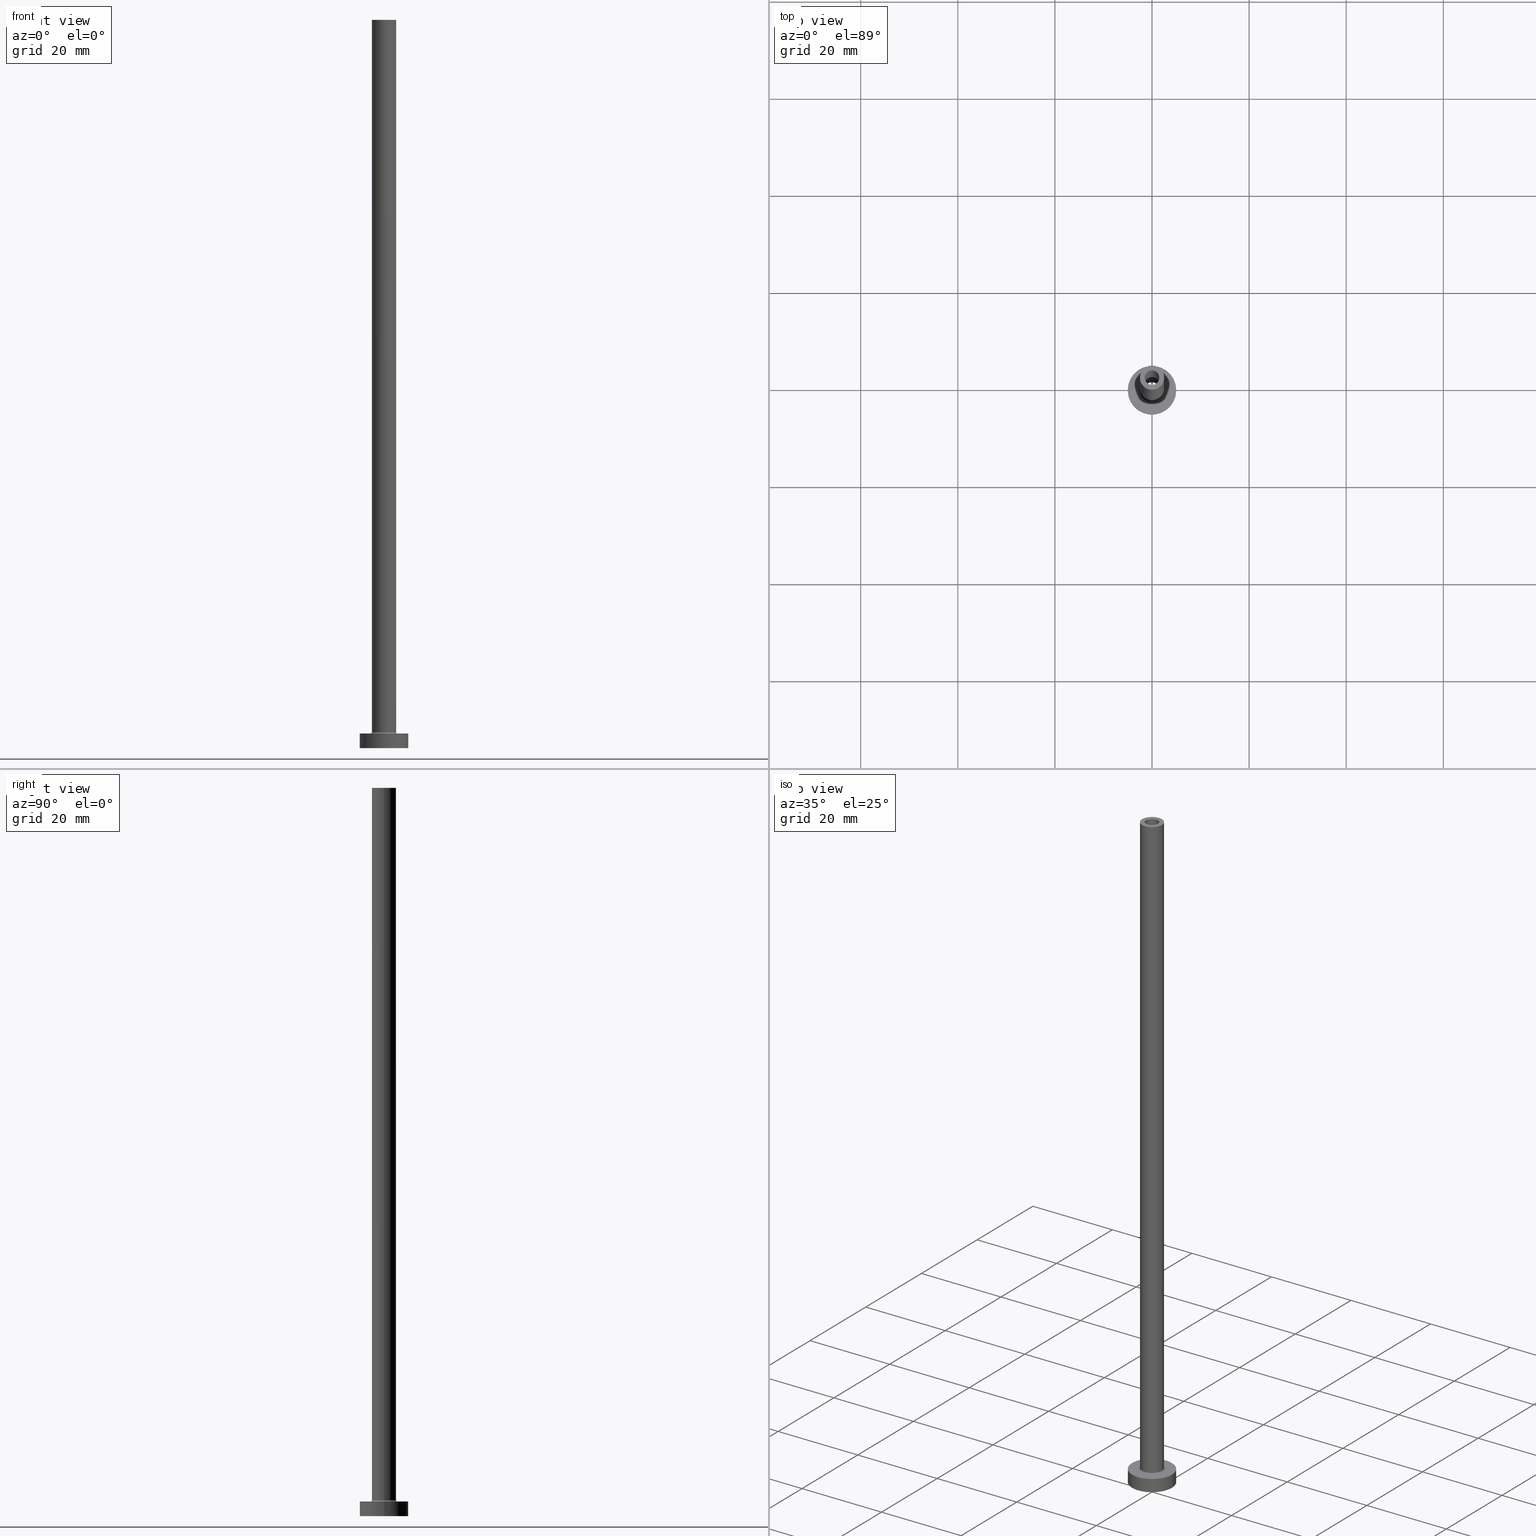
[diagram: canonical four-view strip — front | top / right | iso, engineering-drawing reading convention]
A machine part, canonical four-view strip (front | top / right | iso — engineering-drawing reading convention). The complete STEP part file that produces these views, byte-faithful:
ISO-10303-21;
HEADER;
FILE_DESCRIPTION (( 'STEP AP203' ),
    '1' );
FILE_NAME ('88a8.STEP',
    '2023-02-13T18:02:23',
    ( '' ),
    ( '' ),
    'SwSTEP 2.0',
    'SolidWorks 2019',
    '' );
FILE_SCHEMA (( 'CONFIG_CONTROL_DESIGN' ));
ENDSEC;

DATA;
#1 = CC_DESIGN_DATE_AND_TIME_ASSIGNMENT ( #335, #192, ( #316 ) ) ;
#2 = AXIS2_PLACEMENT_3D ( 'NONE', #329, #146, #459 ) ;
#3 = VERTEX_POINT ( 'NONE', #208 ) ;
#4 = DIRECTION ( 'NONE',  ( 0.000000000000000000, 0.000000000000000000, 1.000000000000000000 ) ) ;
#5 = CARTESIAN_POINT ( 'NONE',  ( -5.000000000000000000, 0.000000000000000000, 0.000000000000000000 ) ) ;
#6 = APPROVAL_STATUS ( 'not_yet_approved' ) ;
#7 = ADVANCED_FACE ( 'NONE', ( #280, #64 ), #299, .T. ) ;
#8 = VERTEX_POINT ( 'NONE', #416 ) ;
#9 = CARTESIAN_POINT ( 'NONE',  ( 2.500000000000000000, 3.061616997868383141E-16, 3.299999999999997158 ) ) ;
#10 = COORDINATED_UNIVERSAL_TIME_OFFSET ( 1, 0, .AHEAD. ) ;
#11 = DIRECTION ( 'NONE',  ( 1.000000000000000000, 0.000000000000000000, 0.000000000000000000 ) ) ;
#12 = ORIENTED_EDGE ( 'NONE', *, *, #251, .T. ) ;
#13 = DIRECTION ( 'NONE',  ( -1.000000000000000000, 0.000000000000000000, 0.000000000000000000 ) ) ;
#14 = AXIS2_PLACEMENT_3D ( 'NONE', #439, #82, #333 ) ;
#15 = CARTESIAN_POINT ( 'NONE',  ( 0.000000000000000000, 0.000000000000000000, 3.000000000000000000 ) ) ;
#16 = DIRECTION ( 'NONE',  ( -0.000000000000000000, -0.000000000000000000, -1.000000000000000000 ) ) ;
#17 = CARTESIAN_POINT ( 'NONE',  ( -1.650000000000000133, 0.000000000000000000, 105.0000000000000000 ) ) ;
#18 = EDGE_LOOP ( 'NONE', ( #341, #222 ) ) ;
#19 = DIRECTION ( 'NONE',  ( 1.000000000000000000, 0.000000000000000000, 0.000000000000000000 ) ) ;
#20 = CARTESIAN_POINT ( 'NONE',  ( 0.000000000000000000, 0.000000000000000000, 0.000000000000000000 ) ) ;
#21 = VERTEX_POINT ( 'NONE', #308 ) ;
#22 = PRODUCT_DEFINITION_SHAPE ( 'NONE', 'NONE',  #316 ) ;
#23 = FACE_OUTER_BOUND ( 'NONE', #293, .T. ) ;
#24 = CARTESIAN_POINT ( 'NONE',  ( 2.799999999999999822, 0.000000000000000000, 3.299999999999997158 ) ) ;
#25 = EDGE_LOOP ( 'NONE', ( #200, #405 ) ) ;
#26 = AXIS2_PLACEMENT_3D ( 'NONE', #328, #425, #112 ) ;
#27 = ADVANCED_FACE ( 'NONE', ( #126 ), #415, .F. ) ;
#28 = PERSON_AND_ORGANIZATION_ROLE ( 'classification_officer' ) ;
#29 = VERTEX_POINT ( 'NONE', #103 ) ;
#30 = DIRECTION ( 'NONE',  ( -0.000000000000000000, -0.000000000000000000, -1.000000000000000000 ) ) ;
#31 = EDGE_LOOP ( 'NONE', ( #143, #99 ) ) ;
#32 = EDGE_LOOP ( 'NONE', ( #291, #379 ) ) ;
#33 = CARTESIAN_POINT ( 'NONE',  ( -1.500000000000000222, 0.000000000000000000, 150.0000000000000000 ) ) ;
#34 = CIRCLE ( 'NONE', #90, 2.799999999999999822 ) ;
#35 = CC_DESIGN_APPROVAL ( #80, ( #316 ) ) ;
#36 = ORIENTED_EDGE ( 'NONE', *, *, #306, .T. ) ;
#37 = CC_DESIGN_PERSON_AND_ORGANIZATION_ASSIGNMENT ( #120, #56, ( #339 ) ) ;
#38 = VERTEX_POINT ( 'NONE', #246 ) ;
#39 = CARTESIAN_POINT ( 'NONE',  ( 0.000000000000000000, 0.000000000000000000, 105.0000000000000000 ) ) ;
#40 = CALENDAR_DATE ( 2023, 13, 2 ) ;
#41 = ORIENTED_EDGE ( 'NONE', *, *, #42, .T. ) ;
#42 = EDGE_CURVE ( 'NONE', #159, #38, #312, .T. ) ;
#43 = ADVANCED_FACE ( 'NONE', ( #460 ), #345, .F. ) ;
#44 = PERSON_AND_ORGANIZATION ( #167, #295 ) ;
#45 = DIRECTION ( 'NONE',  ( -1.000000000000000000, 1.224646799147353207E-16, 0.000000000000000000 ) ) ;
#46 = LINE ( 'NONE', #66, #285 ) ;
#47 = CC_DESIGN_DATE_AND_TIME_ASSIGNMENT ( #332, #354, ( #394 ) ) ;
#48 = ORIENTED_EDGE ( 'NONE', *, *, #172, .F. ) ;
#49 = DIRECTION ( 'NONE',  ( 0.000000000000000000, 0.000000000000000000, 1.000000000000000000 ) ) ;
#50 = EDGE_CURVE ( 'NONE', #461, #38, #46, .T. ) ;
#51 = COORDINATED_UNIVERSAL_TIME_OFFSET ( 1, 0, .AHEAD. ) ;
#52 = ORIENTED_EDGE ( 'NONE', *, *, #224, .T. ) ;
#53 = EDGE_CURVE ( 'NONE', #268, #159, #451, .T. ) ;
#54 = CARTESIAN_POINT ( 'NONE',  ( -1.650000000000000133, 0.000000000000000000, 109.6669047558311973 ) ) ;
#55 = ORIENTED_EDGE ( 'NONE', *, *, #380, .F. ) ;
#56 = PERSON_AND_ORGANIZATION_ROLE ( 'creator' ) ;
#57 = DIRECTION ( 'NONE',  ( -0.000000000000000000, -0.000000000000000000, -1.000000000000000000 ) ) ;
#58 = APPROVAL_STATUS ( 'not_yet_approved' ) ;
#59 = EDGE_CURVE ( 'NONE', #360, #322, #436, .T. ) ;
#60 = DIRECTION ( 'NONE',  ( 0.000000000000000000, 0.000000000000000000, 1.000000000000000000 ) ) ;
#61 = CIRCLE ( 'NONE', #424, 2.500000000000000000 ) ;
#62 = FACE_OUTER_BOUND ( 'NONE', #382, .T. ) ;
#63 = AXIS2_PLACEMENT_3D ( 'NONE', #84, #404, #86 ) ;
#64 = FACE_OUTER_BOUND ( 'NONE', #104, .T. ) ;
#65 = ORIENTED_EDGE ( 'NONE', *, *, #171, .F. ) ;
#66 = CARTESIAN_POINT ( 'NONE',  ( -2.500000000000000000, 0.000000000000000000, 150.0000000000000000 ) ) ;
#67 = VERTEX_POINT ( 'NONE', #258 ) ;
#68 = DIRECTION ( 'NONE',  ( 1.000000000000000000, 0.000000000000000000, 0.000000000000000000 ) ) ;
#69 = TOROIDAL_SURFACE ( 'NONE', #361, 2.799999999999999822, 0.2999999999999999889 ) ;
#70 = EDGE_LOOP ( 'NONE', ( #369, #52, #175, #134 ) ) ;
#71 = DIRECTION ( 'NONE',  ( 0.000000000000000000, 0.000000000000000000, 1.000000000000000000 ) ) ;
#72 = VECTOR ( 'NONE', #130, 1000.000000000000000 ) ;
#73 = PLANE ( 'NONE',  #152 ) ;
#74 = MANIFOLD_SOLID_BREP ( 'Odebrat vysunut�m4', #396 ) ;
#75 = FACE_OUTER_BOUND ( 'NONE', #76, .T. ) ;
#76 = EDGE_LOOP ( 'NONE', ( #155, #162, #115, #12 ) ) ;
#77 = DIRECTION ( 'NONE',  ( 1.000000000000000000, 0.000000000000000000, 0.000000000000000000 ) ) ;
#78 = CARTESIAN_POINT ( 'NONE',  ( 1.500000000000000222, 1.836970198721029934E-16, 150.0000000000000000 ) ) ;
#79 = FACE_BOUND ( 'NONE', #25, .T. ) ;
#80 = APPROVAL ( #269, 'NEUR�EN�' ) ;
#81 = AXIS2_PLACEMENT_3D ( 'NONE', #441, #94, #445 ) ;
#82 = DIRECTION ( 'NONE',  ( 0.000000000000000000, 0.000000000000000000, 1.000000000000000000 ) ) ;
#83 = AXIS2_PLACEMENT_3D ( 'NONE', #178, #386, #139 ) ;
#84 = CARTESIAN_POINT ( 'NONE',  ( 0.000000000000000000, 0.000000000000000000, 105.0000000000000000 ) ) ;
#85 = DIRECTION ( 'NONE',  ( 1.000000000000000000, 0.000000000000000000, 0.000000000000000000 ) ) ;
#86 = DIRECTION ( 'NONE',  ( 1.000000000000000000, 0.000000000000000000, 0.000000000000000000 ) ) ;
#87 = ORIENTED_EDGE ( 'NONE', *, *, #279, .F. ) ;
#88 = CARTESIAN_POINT ( 'NONE',  ( 1.500000000000000222, 1.836970198721029934E-16, 150.0000000000000000 ) ) ;
#89 = CARTESIAN_POINT ( 'NONE',  ( -2.500000000000000000, 0.000000000000000000, 150.0000000000000000 ) ) ;
#90 = AXIS2_PLACEMENT_3D ( 'NONE', #321, #298, #442 ) ;
#91 = DIRECTION ( 'NONE',  ( 0.000000000000000000, 0.000000000000000000, -1.000000000000000000 ) ) ;
#92 = EDGE_CURVE ( 'NONE', #322, #458, #384, .T. ) ;
#93 = DIRECTION ( 'NONE',  ( -1.000000000000000000, 0.000000000000000000, 0.000000000000000000 ) ) ;
#94 = DIRECTION ( 'NONE',  ( 0.000000000000000000, 0.000000000000000000, -1.000000000000000000 ) ) ;
#95 = ORIENTED_EDGE ( 'NONE', *, *, #315, .T. ) ;
#96 = DIRECTION ( 'NONE',  ( 0.000000000000000000, 0.000000000000000000, 1.000000000000000000 ) ) ;
#97 = COORDINATED_UNIVERSAL_TIME_OFFSET ( 1, 0, .AHEAD. ) ;
#99 = ORIENTED_EDGE ( 'NONE', *, *, #225, .T. ) ;
#98 = CIRCLE ( 'NONE', #418, 5.000000000000000000 ) ;
#100 = APPROVAL_PERSON_ORGANIZATION ( #44, #326, #263 ) ;
#101 = CIRCLE ( 'NONE', #336, 0.2999999999999999334 ) ;
#102 = CIRCLE ( 'NONE', #63, 1.500000000000000222 ) ;
#103 = CARTESIAN_POINT ( 'NONE',  ( 5.000000000000000000, 6.123233995736766282E-16, 0.000000000000000000 ) ) ;
#104 = EDGE_LOOP ( 'NONE', ( #273, #183 ) ) ;
#105 = CIRCLE ( 'NONE', #310, 1.500000000000000222 ) ;
#106 = DIRECTION ( 'NONE',  ( 0.000000000000000000, 0.000000000000000000, 1.000000000000000000 ) ) ;
#107 = CC_DESIGN_PERSON_AND_ORGANIZATION_ASSIGNMENT ( #364, #337, ( #227 ) ) ;
#108 = APPLICATION_CONTEXT ( 'configuration controlled 3d designs of mechanical parts and assemblies' ) ;
#109 = ORIENTED_EDGE ( 'NONE', *, *, #409, .T. ) ;
#110 = APPLICATION_CONTEXT ( 'configuration controlled 3d designs of mechanical parts and assemblies' ) ;
#111 = VERTEX_POINT ( 'NONE', #389 ) ;
#112 = DIRECTION ( 'NONE',  ( -1.000000000000000000, 0.000000000000000000, 0.000000000000000000 ) ) ;
#113 = DIRECTION ( 'NONE',  ( -0.000000000000000000, -0.000000000000000000, -1.000000000000000000 ) ) ;
#114 = APPROVAL_DATE_TIME ( #179, #326 ) ;
#115 = ORIENTED_EDGE ( 'NONE', *, *, #50, .T. ) ;
#116 = CARTESIAN_POINT ( 'NONE',  ( 0.000000000000000000, 0.000000000000000000, 105.0000000000000000 ) ) ;
#117 = APPROVAL_PERSON_ORGANIZATION ( #237, #149, #128 ) ;
#118 = ORIENTED_EDGE ( 'NONE', *, *, #174, .F. ) ;
#119 = AXIS2_PLACEMENT_3D ( 'NONE', #304, #60, #129 ) ;
#120 = PERSON_AND_ORGANIZATION ( #167, #295 ) ;
#121 = DIRECTION ( 'NONE',  ( 1.000000000000000000, 0.000000000000000000, 0.000000000000000000 ) ) ;
#122 = ORIENTED_EDGE ( 'NONE', *, *, #174, .T. ) ;
#123 = EDGE_CURVE ( 'NONE', #38, #8, #101, .T. ) ;
#124 = AXIS2_PLACEMENT_3D ( 'NONE', #368, #16, #156 ) ;
#125 = ORIENTED_EDGE ( 'NONE', *, *, #279, .T. ) ;
#126 = FACE_OUTER_BOUND ( 'NONE', #70, .T. ) ;
#127 = CC_DESIGN_PERSON_AND_ORGANIZATION_ASSIGNMENT ( #282, #427, ( #339 ) ) ;
#128 = APPROVAL_ROLE ( '' ) ;
#129 = DIRECTION ( 'NONE',  ( 1.000000000000000000, 0.000000000000000000, -0.000000000000000000 ) ) ;
#130 = DIRECTION ( 'NONE',  ( -0.000000000000000000, -0.000000000000000000, -1.000000000000000000 ) ) ;
#131 =( GEOMETRIC_REPRESENTATION_CONTEXT ( 3 ) GLOBAL_UNCERTAINTY_ASSIGNED_CONTEXT ( ( #252 ) ) GLOBAL_UNIT_ASSIGNED_CONTEXT ( ( #232, #265, #431 ) ) REPRESENTATION_CONTEXT ( 'NONE', 'WORKASPACE' ) );
#132 = ADVANCED_BREP_SHAPE_REPRESENTATION ( '88a8', ( #74, #14 ), #131 ) ;
#133 = EDGE_CURVE ( 'NONE', #461, #268, #187, .T. ) ;
#134 = ORIENTED_EDGE ( 'NONE', *, *, #197, .F. ) ;
#135 = CIRCLE ( 'NONE', #2, 2.500000000000000000 ) ;
#136 = LOCAL_TIME ( 19, 2, 23.00000000000000000, #201 ) ;
#137 = ORIENTED_EDGE ( 'NONE', *, *, #420, .F. ) ;
#138 = ORIENTED_EDGE ( 'NONE', *, *, #181, .F. ) ;
#139 = DIRECTION ( 'NONE',  ( 1.000000000000000000, 0.000000000000000000, 0.000000000000000000 ) ) ;
#140 = ADVANCED_FACE ( 'NONE', ( #358 ), #144, .T. ) ;
#141 = ORIENTED_EDGE ( 'NONE', *, *, #197, .T. ) ;
#142 = AXIS2_PLACEMENT_3D ( 'NONE', #24, #403, #446 ) ;
#143 = ORIENTED_EDGE ( 'NONE', *, *, #429, .T. ) ;
#144 = CYLINDRICAL_SURFACE ( 'NONE', #26, 2.500000000000000000 ) ;
#145 = ORIENTED_EDGE ( 'NONE', *, *, #251, .F. ) ;
#146 = DIRECTION ( 'NONE',  ( 0.000000000000000000, 0.000000000000000000, 1.000000000000000000 ) ) ;
#147 = FACE_BOUND ( 'NONE', #357, .T. ) ;
#148 = DIRECTION ( 'NONE',  ( 1.000000000000000000, 0.000000000000000000, 0.000000000000000000 ) ) ;
#149 = APPROVAL ( #58, 'NEUR�EN�' ) ;
#150 = CYLINDRICAL_SURFACE ( 'NONE', #81, 1.650000000000000133 ) ;
#151 = PERSON_AND_ORGANIZATION ( #167, #295 ) ;
#152 = AXIS2_PLACEMENT_3D ( 'NONE', #217, #106, #309 ) ;
#153 = CC_DESIGN_APPROVAL ( #326, ( #394 ) ) ;
#154 = MECHANICAL_CONTEXT ( 'NONE', #110, 'mechanical' ) ;
#155 = ORIENTED_EDGE ( 'NONE', *, *, #53, .F. ) ;
#156 = DIRECTION ( 'NONE',  ( 1.000000000000000000, 0.000000000000000000, 0.000000000000000000 ) ) ;
#157 = CARTESIAN_POINT ( 'NONE',  ( 0.000000000000000000, 0.000000000000000000, 150.0000000000000000 ) ) ;
#158 = EDGE_LOOP ( 'NONE', ( #87, #180, #95, #408 ) ) ;
#159 = VERTEX_POINT ( 'NONE', #9 ) ;
#160 = CARTESIAN_POINT ( 'NONE',  ( 0.000000000000000000, 0.000000000000000000, 3.000000000000000000 ) ) ;
#161 = LOCAL_TIME ( 19, 2, 23.00000000000000000, #51 ) ;
#162 = ORIENTED_EDGE ( 'NONE', *, *, #133, .F. ) ;
#163 = CALENDAR_DATE ( 2023, 13, 2 ) ;
#164 = AXIS2_PLACEMENT_3D ( 'NONE', #387, #377, #211 ) ;
#165 = EDGE_LOOP ( 'NONE', ( #432, #276, #41, #302 ) ) ;
#166 = DIRECTION ( 'NONE',  ( 1.000000000000000000, 0.000000000000000000, 0.000000000000000000 ) ) ;
#167 = PERSON ( 'NEUR�EN�', 'NEUR�EN�', 'NEUR�EN�', ('NEUR�EN�'), ('NEUR�EN�'), ('NEUR�EN�') ) ;
#168 = ORIENTED_EDGE ( 'NONE', *, *, #123, .F. ) ;
#169 = PERSON_AND_ORGANIZATION ( #167, #295 ) ;
#170 = DIRECTION ( 'NONE',  ( -0.000000000000000000, -0.000000000000000000, -1.000000000000000000 ) ) ;
#171 = EDGE_CURVE ( 'NONE', #360, #67, #255, .T. ) ;
#172 = EDGE_CURVE ( 'NONE', #260, #215, #351, .T. ) ;
#173 = LINE ( 'NONE', #317, #204 ) ;
#174 = EDGE_CURVE ( 'NONE', #215, #260, #340, .T. ) ;
#175 = ORIENTED_EDGE ( 'NONE', *, *, #171, .T. ) ;
#176 = DIRECTION ( 'NONE',  ( 1.000000000000000000, 0.000000000000000000, 0.000000000000000000 ) ) ;
#177 = AXIS2_PLACEMENT_3D ( 'NONE', #346, #213, #325 ) ;
#178 = CARTESIAN_POINT ( 'NONE',  ( 0.000000000000000000, 0.000000000000000000, 105.0000000000000000 ) ) ;
#179 = DATE_AND_TIME ( #40, #348 ) ;
#180 = ORIENTED_EDGE ( 'NONE', *, *, #429, .F. ) ;
#181 = EDGE_CURVE ( 'NONE', #29, #313, #447, .T. ) ;
#182 = CARTESIAN_POINT ( 'NONE',  ( -5.000000000000000000, 0.000000000000000000, 3.000000000000000000 ) ) ;
#183 = ORIENTED_EDGE ( 'NONE', *, *, #247, .T. ) ;
#184 = DIRECTION ( 'NONE',  ( -1.000000000000000000, 0.000000000000000000, 0.000000000000000000 ) ) ;
#185 = DIRECTION ( 'NONE',  ( 0.000000000000000000, 0.000000000000000000, 1.000000000000000000 ) ) ;
#186 = FACE_OUTER_BOUND ( 'NONE', #388, .T. ) ;
#187 = CIRCLE ( 'NONE', #300, 2.500000000000000000 ) ;
#188 = ADVANCED_FACE ( 'NONE', ( #147, #186 ), #430, .F. ) ;
#189 = PERSON_AND_ORGANIZATION ( #167, #295 ) ;
#190 = ORIENTED_EDGE ( 'NONE', *, *, #92, .T. ) ;
#191 = FACE_OUTER_BOUND ( 'NONE', #245, .T. ) ;
#192 = DATE_TIME_ROLE ( 'creation_date' ) ;
#193 = CARTESIAN_POINT ( 'NONE',  ( 1.650000000000000133, 2.020667218593133001E-16, 105.0000000000000000 ) ) ;
#194 = CIRCLE ( 'NONE', #142, 0.2999999999999999334 ) ;
#195 = DIRECTION ( 'NONE',  ( 0.000000000000000000, 0.000000000000000000, -1.000000000000000000 ) ) ;
#196 = APPLICATION_PROTOCOL_DEFINITION ( 'international standard', 'config_control_design', 1994, #110 ) ;
#197 = EDGE_CURVE ( 'NONE', #458, #67, #102, .T. ) ;
#198 = EDGE_CURVE ( 'NONE', #215, #111, #231, .T. ) ;
#199 = DIRECTION ( 'NONE',  ( -0.000000000000000000, -0.000000000000000000, -1.000000000000000000 ) ) ;
#200 = ORIENTED_EDGE ( 'NONE', *, *, #450, .T. ) ;
#201 = COORDINATED_UNIVERSAL_TIME_OFFSET ( 1, 0, .AHEAD. ) ;
#202 = CARTESIAN_POINT ( 'NONE',  ( 0.000000000000000000, 0.000000000000000000, 150.0000000000000000 ) ) ;
#203 = CARTESIAN_POINT ( 'NONE',  ( 0.000000000000000000, 0.000000000000000000, 3.000000000000000000 ) ) ;
#204 = VECTOR ( 'NONE', #454, 1000.000000000000000 ) ;
#205 = DATE_AND_TIME ( #311, #161 ) ;
#206 = CARTESIAN_POINT ( 'NONE',  ( 0.000000000000000000, 0.000000000000000000, 3.299999999999997158 ) ) ;
#207 = DIRECTION ( 'NONE',  ( -1.000000000000000000, 0.000000000000000000, 0.000000000000000000 ) ) ;
#208 = CARTESIAN_POINT ( 'NONE',  ( 2.799999999999999822, 0.000000000000000000, 2.999999999999998668 ) ) ;
#209 = DIRECTION ( 'NONE',  ( 0.000000000000000000, 0.000000000000000000, 1.000000000000000000 ) ) ;
#210 = AXIS2_PLACEMENT_3D ( 'NONE', #203, #267, #85 ) ;
#211 = DIRECTION ( 'NONE',  ( 1.000000000000000000, 0.000000000000000000, 0.000000000000000000 ) ) ;
#212 = ORIENTED_EDGE ( 'NONE', *, *, #198, .T. ) ;
#213 = DIRECTION ( 'NONE',  ( 0.000000000000000000, 0.000000000000000000, -1.000000000000000000 ) ) ;
#214 = CYLINDRICAL_SURFACE ( 'NONE', #374, 5.000000000000000000 ) ;
#215 = VERTEX_POINT ( 'NONE', #17 ) ;
#216 = FACE_OUTER_BOUND ( 'NONE', #443, .T. ) ;
#217 = CARTESIAN_POINT ( 'NONE',  ( 0.000000000000000000, 0.000000000000000000, 0.000000000000000000 ) ) ;
#218 = CIRCLE ( 'NONE', #281, 5.000000000000000000 ) ;
#219 = LINE ( 'NONE', #262, #323 ) ;
#220 = DIRECTION ( 'NONE',  ( 1.224646799147353207E-16, 1.000000000000000000, -0.000000000000000000 ) ) ;
#221 = CARTESIAN_POINT ( 'NONE',  ( 0.000000000000000000, 0.000000000000000000, 105.0000000000000000 ) ) ;
#222 = ORIENTED_EDGE ( 'NONE', *, *, #409, .F. ) ;
#223 = DIRECTION ( 'NONE',  ( 0.000000000000000000, 0.000000000000000000, -1.000000000000000000 ) ) ;
#224 = EDGE_CURVE ( 'NONE', #322, #360, #243, .T. ) ;
#225 = EDGE_CURVE ( 'NONE', #21, #393, #218, .T. ) ;
#226 = LOCAL_TIME ( 19, 2, 23.00000000000000000, #274 ) ;
#227 = PRODUCT ( '88a8', '88a8', '', ( #154 ) ) ;
#228 = VECTOR ( 'NONE', #350, 1000.000000000000000 ) ;
#229 = DIRECTION ( 'NONE',  ( 0.000000000000000000, 0.000000000000000000, -1.000000000000000000 ) ) ;
#230 = APPROVAL_DATE_TIME ( #205, #80 ) ;
#231 = LINE ( 'NONE', #54, #437 ) ;
#232 =( LENGTH_UNIT ( ) NAMED_UNIT ( * ) SI_UNIT ( .MILLI., .METRE. ) );
#233 = ADVANCED_FACE ( 'NONE', ( #191 ), #150, .F. ) ;
#234 = ORIENTED_EDGE ( 'NONE', *, *, #181, .T. ) ;
#235 = CYLINDRICAL_SURFACE ( 'NONE', #453, 1.500000000000000222 ) ;
#236 = CARTESIAN_POINT ( 'NONE',  ( 0.000000000000000000, 0.000000000000000000, 3.299999999999997158 ) ) ;
#237 = PERSON_AND_ORGANIZATION ( #167, #295 ) ;
#238 = DIRECTION ( 'NONE',  ( 1.000000000000000000, 0.000000000000000000, 0.000000000000000000 ) ) ;
#239 = CC_DESIGN_PERSON_AND_ORGANIZATION_ASSIGNMENT ( #169, #28, ( #394 ) ) ;
#240 = AXIS2_PLACEMENT_3D ( 'NONE', #259, #366, #13 ) ;
#241 = CALENDAR_DATE ( 2023, 13, 2 ) ;
#242 = CC_DESIGN_SECURITY_CLASSIFICATION ( #394, ( #339 ) ) ;
#243 = CIRCLE ( 'NONE', #353, 1.500000000000000222 ) ;
#244 = DIRECTION ( 'NONE',  ( 0.000000000000000000, 0.000000000000000000, -1.000000000000000000 ) ) ;
#245 = EDGE_LOOP ( 'NONE', ( #122, #307, #109, #253 ) ) ;
#246 = CARTESIAN_POINT ( 'NONE',  ( -2.500000000000000000, 0.000000000000000000, 3.299999999999997158 ) ) ;
#247 = EDGE_CURVE ( 'NONE', #268, #461, #61, .T. ) ;
#248 = CIRCLE ( 'NONE', #124, 1.650000000000000133 ) ;
#249 = AXIS2_PLACEMENT_3D ( 'NONE', #376, #209, #11 ) ;
#250 = ORIENTED_EDGE ( 'NONE', *, *, #438, .T. ) ;
#251 = EDGE_CURVE ( 'NONE', #38, #159, #135, .T. ) ;
#252 = UNCERTAINTY_MEASURE_WITH_UNIT (LENGTH_MEASURE( 1.000000000000000082E-05 ), #232, 'distance_accuracy_value', 'NONE');
#253 = ORIENTED_EDGE ( 'NONE', *, *, #198, .F. ) ;
#254 = ORIENTED_EDGE ( 'NONE', *, *, #315, .F. ) ;
#255 = LINE ( 'NONE', #33, #228 ) ;
#256 = CIRCLE ( 'NONE', #210, 5.000000000000000000 ) ;
#257 = CC_DESIGN_APPROVAL ( #149, ( #339 ) ) ;
#258 = CARTESIAN_POINT ( 'NONE',  ( -1.500000000000000222, 0.000000000000000000, 105.0000000000000000 ) ) ;
#259 = CARTESIAN_POINT ( 'NONE',  ( 0.000000000000000000, 0.000000000000000000, 150.0000000000000000 ) ) ;
#260 = VERTEX_POINT ( 'NONE', #193 ) ;
#261 = CARTESIAN_POINT ( 'NONE',  ( 1.650000000000000133, 2.020667218593133001E-16, 0.000000000000000000 ) ) ;
#262 = CARTESIAN_POINT ( 'NONE',  ( 1.650000000000000133, 2.020667218593133001E-16, 109.6669047558311973 ) ) ;
#263 = APPROVAL_ROLE ( '' ) ;
#264 = DIRECTION ( 'NONE',  ( 0.000000000000000000, 0.000000000000000000, 1.000000000000000000 ) ) ;
#265 =( NAMED_UNIT ( * ) PLANE_ANGLE_UNIT ( ) SI_UNIT ( $, .RADIAN. ) );
#266 = EDGE_LOOP ( 'NONE', ( #289, #138 ) ) ;
#267 = DIRECTION ( 'NONE',  ( 0.000000000000000000, 0.000000000000000000, 1.000000000000000000 ) ) ;
#268 = VERTEX_POINT ( 'NONE', #392 ) ;
#269 = APPROVAL_STATUS ( 'not_yet_approved' ) ;
#270 = PERSON_AND_ORGANIZATION_ROLE ( 'creator' ) ;
#271 = FACE_OUTER_BOUND ( 'NONE', #391, .T. ) ;
#272 = FACE_OUTER_BOUND ( 'NONE', #266, .T. ) ;
#273 = ORIENTED_EDGE ( 'NONE', *, *, #133, .T. ) ;
#274 = COORDINATED_UNIVERSAL_TIME_OFFSET ( 1, 0, .AHEAD. ) ;
#275 = CARTESIAN_POINT ( 'NONE',  ( -1.500000000000000222, 0.000000000000000000, 150.0000000000000000 ) ) ;
#276 = ORIENTED_EDGE ( 'NONE', *, *, #53, .T. ) ;
#277 = AXIS2_PLACEMENT_3D ( 'NONE', #20, #30, #166 ) ;
#278 = ADVANCED_FACE ( 'NONE', ( #314, #272 ), #73, .F. ) ;
#279 = EDGE_CURVE ( 'NONE', #21, #29, #173, .T. ) ;
#280 = FACE_BOUND ( 'NONE', #32, .T. ) ;
#281 = AXIS2_PLACEMENT_3D ( 'NONE', #352, #49, #19 ) ;
#282 = PERSON_AND_ORGANIZATION ( #167, #295 ) ;
#283 = ORIENTED_EDGE ( 'NONE', *, *, #42, .F. ) ;
#284 = CARTESIAN_POINT ( 'NONE',  ( -5.000000000000000000, 0.000000000000000000, 3.000000000000000000 ) ) ;
#285 = VECTOR ( 'NONE', #170, 1000.000000000000000 ) ;
#286 = CARTESIAN_POINT ( 'NONE',  ( 0.000000000000000000, 0.000000000000000000, 150.0000000000000000 ) ) ;
#287 = ORIENTED_EDGE ( 'NONE', *, *, #123, .T. ) ;
#288 = AXIS2_PLACEMENT_3D ( 'NONE', #236, #292, #148 ) ;
#289 = ORIENTED_EDGE ( 'NONE', *, *, #397, .F. ) ;
#290 = LINE ( 'NONE', #284, #338 ) ;
#291 = ORIENTED_EDGE ( 'NONE', *, *, #59, .F. ) ;
#292 = DIRECTION ( 'NONE',  ( 0.000000000000000000, 0.000000000000000000, 1.000000000000000000 ) ) ;
#293 = EDGE_LOOP ( 'NONE', ( #349, #125, #234, #254 ) ) ;
#294 = CARTESIAN_POINT ( 'NONE',  ( 0.000000000000000000, 0.000000000000000000, 150.0000000000000000 ) ) ;
#295 = ORGANIZATION ( 'NEUR�EN�', 'NEUR�EN�', '' ) ;
#296 = EDGE_LOOP ( 'NONE', ( #55, #383, #212, #250 ) ) ;
#297 = PRODUCT_RELATED_PRODUCT_CATEGORY ( 'detail', '', ( #227 ) ) ;
#298 = DIRECTION ( 'NONE',  ( -0.000000000000000000, -0.000000000000000000, -1.000000000000000000 ) ) ;
#299 = PLANE ( 'NONE',  #119 ) ;
#300 = AXIS2_PLACEMENT_3D ( 'NONE', #286, #4, #77 ) ;
#301 = ADVANCED_FACE ( 'NONE', ( #375 ), #214, .T. ) ;
#302 = ORIENTED_EDGE ( 'NONE', *, *, #50, .F. ) ;
#303 = DATE_AND_TIME ( #163, #136 ) ;
#304 = CARTESIAN_POINT ( 'NONE',  ( 0.000000000000000000, 0.000000000000000000, 150.0000000000000000 ) ) ;
#305 = CARTESIAN_POINT ( 'NONE',  ( 0.000000000000000000, 0.000000000000000000, 150.0000000000000000 ) ) ;
#306 = EDGE_CURVE ( 'NONE', #67, #458, #105, .T. ) ;
#307 = ORIENTED_EDGE ( 'NONE', *, *, #380, .T. ) ;
#308 = CARTESIAN_POINT ( 'NONE',  ( 5.000000000000000000, 6.123233995736766282E-16, 3.000000000000000000 ) ) ;
#309 = DIRECTION ( 'NONE',  ( 1.000000000000000000, 0.000000000000000000, -0.000000000000000000 ) ) ;
#310 = AXIS2_PLACEMENT_3D ( 'NONE', #221, #359, #324 ) ;
#311 = CALENDAR_DATE ( 2023, 13, 2 ) ;
#312 = CIRCLE ( 'NONE', #164, 2.500000000000000000 ) ;
#313 = VERTEX_POINT ( 'NONE', #5 ) ;
#314 = FACE_BOUND ( 'NONE', #18, .T. ) ;
#315 = EDGE_CURVE ( 'NONE', #393, #313, #290, .T. ) ;
#316 = PRODUCT_DEFINITION ( 'NEZN�M�', '', #339, #400 ) ;
#317 = CARTESIAN_POINT ( 'NONE',  ( 5.000000000000000000, 6.123233995736766282E-16, 3.000000000000000000 ) ) ;
#318 = VERTEX_POINT ( 'NONE', #261 ) ;
#319 = ADVANCED_FACE ( 'NONE', ( #216 ), #457, .F. ) ;
#320 = ADVANCED_FACE ( 'NONE', ( #79, #402 ), #367, .T. ) ;
#321 = CARTESIAN_POINT ( 'NONE',  ( 0.000000000000000000, 0.000000000000000000, 3.000000000000000000 ) ) ;
#322 = VERTEX_POINT ( 'NONE', #88 ) ;
#323 = VECTOR ( 'NONE', #229, 1000.000000000000000 ) ;
#324 = DIRECTION ( 'NONE',  ( 1.000000000000000000, 0.000000000000000000, 0.000000000000000000 ) ) ;
#325 = DIRECTION ( 'NONE',  ( -1.000000000000000000, 0.000000000000000000, 0.000000000000000000 ) ) ;
#326 = APPROVAL ( #6, 'NEUR�EN�' ) ;
#327 = ORIENTED_EDGE ( 'NONE', *, *, #59, .T. ) ;
#328 = CARTESIAN_POINT ( 'NONE',  ( 0.000000000000000000, 0.000000000000000000, 150.0000000000000000 ) ) ;
#329 = CARTESIAN_POINT ( 'NONE',  ( 0.000000000000000000, 0.000000000000000000, 3.299999999999997158 ) ) ;
#330 = APPROVAL_ROLE ( '' ) ;
#331 = ORIENTED_EDGE ( 'NONE', *, *, #420, .T. ) ;
#332 = DATE_AND_TIME ( #241, #434 ) ;
#333 = DIRECTION ( 'NONE',  ( 1.000000000000000000, 0.000000000000000000, 0.000000000000000000 ) ) ;
#334 = CIRCLE ( 'NONE', #277, 1.650000000000000133 ) ;
#335 = DATE_AND_TIME ( #449, #226 ) ;
#336 = AXIS2_PLACEMENT_3D ( 'NONE', #347, #220, #45 ) ;
#337 = PERSON_AND_ORGANIZATION_ROLE ( 'design_owner' ) ;
#338 = VECTOR ( 'NONE', #113, 1000.000000000000000 ) ;
#339 = PRODUCT_DEFINITION_FORMATION_WITH_SPECIFIED_SOURCE ( 'LIBOVOLN�', '', #227, .NOT_KNOWN. ) ;
#340 = CIRCLE ( 'NONE', #381, 1.650000000000000133 ) ;
#341 = ORIENTED_EDGE ( 'NONE', *, *, #438, .F. ) ;
#342 = DIRECTION ( 'NONE',  ( 1.000000000000000000, 0.000000000000000000, 0.000000000000000000 ) ) ;
#343 = SECURITY_CLASSIFICATION_LEVEL ( 'unclassified' ) ;
#344 = CC_DESIGN_PERSON_AND_ORGANIZATION_ASSIGNMENT ( #151, #270, ( #316 ) ) ;
#345 = CYLINDRICAL_SURFACE ( 'NONE', #177, 1.650000000000000133 ) ;
#346 = CARTESIAN_POINT ( 'NONE',  ( 0.000000000000000000, 0.000000000000000000, 109.6669047558311973 ) ) ;
#347 = CARTESIAN_POINT ( 'NONE',  ( -2.799999999999999822, 3.429011037612588783E-16, 3.299999999999997158 ) ) ;
#349 = ORIENTED_EDGE ( 'NONE', *, *, #225, .F. ) ;
#348 = LOCAL_TIME ( 19, 2, 23.00000000000000000, #10 ) ;
#350 = DIRECTION ( 'NONE',  ( 0.000000000000000000, 0.000000000000000000, -1.000000000000000000 ) ) ;
#351 = CIRCLE ( 'NONE', #83, 1.650000000000000133 ) ;
#352 = CARTESIAN_POINT ( 'NONE',  ( 0.000000000000000000, 0.000000000000000000, 3.000000000000000000 ) ) ;
#353 = AXIS2_PLACEMENT_3D ( 'NONE', #157, #185, #68 ) ;
#354 = DATE_TIME_ROLE ( 'classification_date' ) ;
#355 = DIRECTION ( 'NONE',  ( 1.000000000000000000, 0.000000000000000000, 0.000000000000000000 ) ) ;
#356 = ADVANCED_FACE ( 'NONE', ( #23 ), #370, .T. ) ;
#357 = EDGE_LOOP ( 'NONE', ( #36, #141 ) ) ;
#358 = FACE_OUTER_BOUND ( 'NONE', #165, .T. ) ;
#359 = DIRECTION ( 'NONE',  ( 0.000000000000000000, 0.000000000000000000, 1.000000000000000000 ) ) ;
#360 = VERTEX_POINT ( 'NONE', #275 ) ;
#361 = AXIS2_PLACEMENT_3D ( 'NONE', #206, #371, #342 ) ;
#362 = SHAPE_DEFINITION_REPRESENTATION ( #22, #132 ) ;
#363 = CYLINDRICAL_SURFACE ( 'NONE', #240, 2.500000000000000000 ) ;
#364 = PERSON_AND_ORGANIZATION ( #167, #295 ) ;
#365 = APPROVAL_DATE_TIME ( #303, #149 ) ;
#366 = DIRECTION ( 'NONE',  ( -0.000000000000000000, -0.000000000000000000, -1.000000000000000000 ) ) ;
#367 = PLANE ( 'NONE',  #410 ) ;
#368 = CARTESIAN_POINT ( 'NONE',  ( 0.000000000000000000, 0.000000000000000000, 0.000000000000000000 ) ) ;
#369 = ORIENTED_EDGE ( 'NONE', *, *, #92, .F. ) ;
#370 = CYLINDRICAL_SURFACE ( 'NONE', #433, 5.000000000000000000 ) ;
#371 = DIRECTION ( 'NONE',  ( 0.000000000000000000, 0.000000000000000000, 1.000000000000000000 ) ) ;
#372 = CARTESIAN_POINT ( 'NONE',  ( 1.500000000000000222, 1.836970198721029934E-16, 105.0000000000000000 ) ) ;
#373 = DIRECTION ( 'NONE',  ( 1.000000000000000000, 0.000000000000000000, 0.000000000000000000 ) ) ;
#374 = AXIS2_PLACEMENT_3D ( 'NONE', #390, #426, #184 ) ;
#375 = FACE_OUTER_BOUND ( 'NONE', #158, .T. ) ;
#376 = CARTESIAN_POINT ( 'NONE',  ( 0.000000000000000000, 0.000000000000000000, 0.000000000000000000 ) ) ;
#377 = DIRECTION ( 'NONE',  ( 0.000000000000000000, 0.000000000000000000, 1.000000000000000000 ) ) ;
#378 = CIRCLE ( 'NONE', #444, 2.799999999999999822 ) ;
#379 = ORIENTED_EDGE ( 'NONE', *, *, #224, .F. ) ;
#380 = EDGE_CURVE ( 'NONE', #260, #318, #219, .T. ) ;
#381 = AXIS2_PLACEMENT_3D ( 'NONE', #39, #71, #355 ) ;
#382 = EDGE_LOOP ( 'NONE', ( #145, #287, #422, #137 ) ) ;
#383 = ORIENTED_EDGE ( 'NONE', *, *, #172, .T. ) ;
#384 = LINE ( 'NONE', #78, #448 ) ;
#385 = ADVANCED_FACE ( 'NONE', ( #75 ), #363, .T. ) ;
#386 = DIRECTION ( 'NONE',  ( 0.000000000000000000, 0.000000000000000000, 1.000000000000000000 ) ) ;
#387 = CARTESIAN_POINT ( 'NONE',  ( 0.000000000000000000, 0.000000000000000000, 3.299999999999997158 ) ) ;
#388 = EDGE_LOOP ( 'NONE', ( #118, #48 ) ) ;
#389 = CARTESIAN_POINT ( 'NONE',  ( -1.650000000000000133, 0.000000000000000000, 0.000000000000000000 ) ) ;
#390 = CARTESIAN_POINT ( 'NONE',  ( 0.000000000000000000, 0.000000000000000000, 3.000000000000000000 ) ) ;
#391 = EDGE_LOOP ( 'NONE', ( #327, #190, #428, #65 ) ) ;
#392 = CARTESIAN_POINT ( 'NONE',  ( 2.500000000000000000, 3.061616997868383141E-16, 150.0000000000000000 ) ) ;
#393 = VERTEX_POINT ( 'NONE', #182 ) ;
#394 = SECURITY_CLASSIFICATION ( '', '', #343 ) ;
#395 = EDGE_CURVE ( 'NONE', #8, #3, #34, .T. ) ;
#396 = CLOSED_SHELL ( 'NONE', ( #419, #233, #406, #140, #356, #301, #320, #278, #385, #7, #319, #43, #188, #27 ) ) ;
#397 = EDGE_CURVE ( 'NONE', #313, #29, #98, .T. ) ;
#398 = AXIS2_PLACEMENT_3D ( 'NONE', #116, #264, #399 ) ;
#399 = DIRECTION ( 'NONE',  ( 1.000000000000000000, 0.000000000000000000, -0.000000000000000000 ) ) ;
#400 = DESIGN_CONTEXT ( 'detailed design', #108, 'design' ) ;
#401 = APPLICATION_PROTOCOL_DEFINITION ( 'international standard', 'config_control_design', 1994, #108 ) ;
#402 = FACE_OUTER_BOUND ( 'NONE', #31, .T. ) ;
#403 = DIRECTION ( 'NONE',  ( 0.000000000000000000, -1.000000000000000000, 0.000000000000000000 ) ) ;
#404 = DIRECTION ( 'NONE',  ( 0.000000000000000000, 0.000000000000000000, 1.000000000000000000 ) ) ;
#405 = ORIENTED_EDGE ( 'NONE', *, *, #395, .T. ) ;
#406 = ADVANCED_FACE ( 'NONE', ( #62 ), #69, .F. ) ;
#407 = CARTESIAN_POINT ( 'NONE',  ( 0.000000000000000000, 0.000000000000000000, 3.000000000000000000 ) ) ;
#408 = ORIENTED_EDGE ( 'NONE', *, *, #397, .T. ) ;
#409 = EDGE_CURVE ( 'NONE', #318, #111, #334, .T. ) ;
#410 = AXIS2_PLACEMENT_3D ( 'NONE', #15, #411, #440 ) ;
#411 = DIRECTION ( 'NONE',  ( 0.000000000000000000, 0.000000000000000000, 1.000000000000000000 ) ) ;
#412 = APPROVAL_PERSON_ORGANIZATION ( #189, #80, #330 ) ;
#413 = ORIENTED_EDGE ( 'NONE', *, *, #395, .F. ) ;
#414 = CARTESIAN_POINT ( 'NONE',  ( 0.000000000000000000, 0.000000000000000000, 0.000000000000000000 ) ) ;
#415 = CYLINDRICAL_SURFACE ( 'NONE', #455, 1.500000000000000222 ) ;
#416 = CARTESIAN_POINT ( 'NONE',  ( -2.799999999999999822, 3.429011037612589276E-16, 2.999999999999998668 ) ) ;
#417 = CARTESIAN_POINT ( 'NONE',  ( 0.000000000000000000, 0.000000000000000000, 150.0000000000000000 ) ) ;
#418 = AXIS2_PLACEMENT_3D ( 'NONE', #414, #96, #238 ) ;
#419 = ADVANCED_FACE ( 'NONE', ( #271 ), #235, .F. ) ;
#420 = EDGE_CURVE ( 'NONE', #159, #3, #194, .T. ) ;
#421 = AXIS2_PLACEMENT_3D ( 'NONE', #417, #423, #176 ) ;
#422 = ORIENTED_EDGE ( 'NONE', *, *, #450, .F. ) ;
#423 = DIRECTION ( 'NONE',  ( 0.000000000000000000, 0.000000000000000000, 1.000000000000000000 ) ) ;
#424 = AXIS2_PLACEMENT_3D ( 'NONE', #294, #435, #373 ) ;
#425 = DIRECTION ( 'NONE',  ( -0.000000000000000000, -0.000000000000000000, -1.000000000000000000 ) ) ;
#426 = DIRECTION ( 'NONE',  ( -0.000000000000000000, -0.000000000000000000, -1.000000000000000000 ) ) ;
#427 = PERSON_AND_ORGANIZATION_ROLE ( 'design_supplier' ) ;
#428 = ORIENTED_EDGE ( 'NONE', *, *, #306, .F. ) ;
#429 = EDGE_CURVE ( 'NONE', #393, #21, #256, .T. ) ;
#430 = PLANE ( 'NONE',  #398 ) ;
#431 =( NAMED_UNIT ( * ) SI_UNIT ( $, .STERADIAN. ) SOLID_ANGLE_UNIT ( ) );
#432 = ORIENTED_EDGE ( 'NONE', *, *, #247, .F. ) ;
#433 = AXIS2_PLACEMENT_3D ( 'NONE', #160, #57, #93 ) ;
#434 = LOCAL_TIME ( 19, 2, 23.00000000000000000, #97 ) ;
#435 = DIRECTION ( 'NONE',  ( 0.000000000000000000, 0.000000000000000000, 1.000000000000000000 ) ) ;
#436 = CIRCLE ( 'NONE', #421, 1.500000000000000222 ) ;
#437 = VECTOR ( 'NONE', #195, 1000.000000000000000 ) ;
#438 = EDGE_CURVE ( 'NONE', #111, #318, #248, .T. ) ;
#439 = CARTESIAN_POINT ( 'NONE',  ( 0.000000000000000000, 0.000000000000000000, 0.000000000000000000 ) ) ;
#440 = DIRECTION ( 'NONE',  ( 1.000000000000000000, 0.000000000000000000, -0.000000000000000000 ) ) ;
#441 = CARTESIAN_POINT ( 'NONE',  ( 0.000000000000000000, 0.000000000000000000, 109.6669047558311973 ) ) ;
#442 = DIRECTION ( 'NONE',  ( 1.000000000000000000, 0.000000000000000000, 0.000000000000000000 ) ) ;
#443 = EDGE_LOOP ( 'NONE', ( #168, #283, #331, #413 ) ) ;
#444 = AXIS2_PLACEMENT_3D ( 'NONE', #407, #199, #121 ) ;
#445 = DIRECTION ( 'NONE',  ( -1.000000000000000000, 0.000000000000000000, 0.000000000000000000 ) ) ;
#446 = DIRECTION ( 'NONE',  ( 0.000000000000000000, 0.000000000000000000, -1.000000000000000000 ) ) ;
#447 = CIRCLE ( 'NONE', #249, 5.000000000000000000 ) ;
#448 = VECTOR ( 'NONE', #223, 1000.000000000000000 ) ;
#449 = CALENDAR_DATE ( 2023, 13, 2 ) ;
#450 = EDGE_CURVE ( 'NONE', #3, #8, #378, .T. ) ;
#451 = LINE ( 'NONE', #456, #72 ) ;
#452 = DIRECTION ( 'NONE',  ( -1.000000000000000000, 0.000000000000000000, 0.000000000000000000 ) ) ;
#453 = AXIS2_PLACEMENT_3D ( 'NONE', #202, #91, #452 ) ;
#454 = DIRECTION ( 'NONE',  ( -0.000000000000000000, -0.000000000000000000, -1.000000000000000000 ) ) ;
#455 = AXIS2_PLACEMENT_3D ( 'NONE', #305, #244, #207 ) ;
#456 = CARTESIAN_POINT ( 'NONE',  ( 2.500000000000000000, 3.061616997868383141E-16, 150.0000000000000000 ) ) ;
#457 = TOROIDAL_SURFACE ( 'NONE', #288, 2.799999999999999822, 0.2999999999999999889 ) ;
#458 = VERTEX_POINT ( 'NONE', #372 ) ;
#459 = DIRECTION ( 'NONE',  ( 1.000000000000000000, 0.000000000000000000, 0.000000000000000000 ) ) ;
#460 = FACE_OUTER_BOUND ( 'NONE', #296, .T. ) ;
#461 = VERTEX_POINT ( 'NONE', #89 ) ;
ENDSEC;
END-ISO-10303-21;
